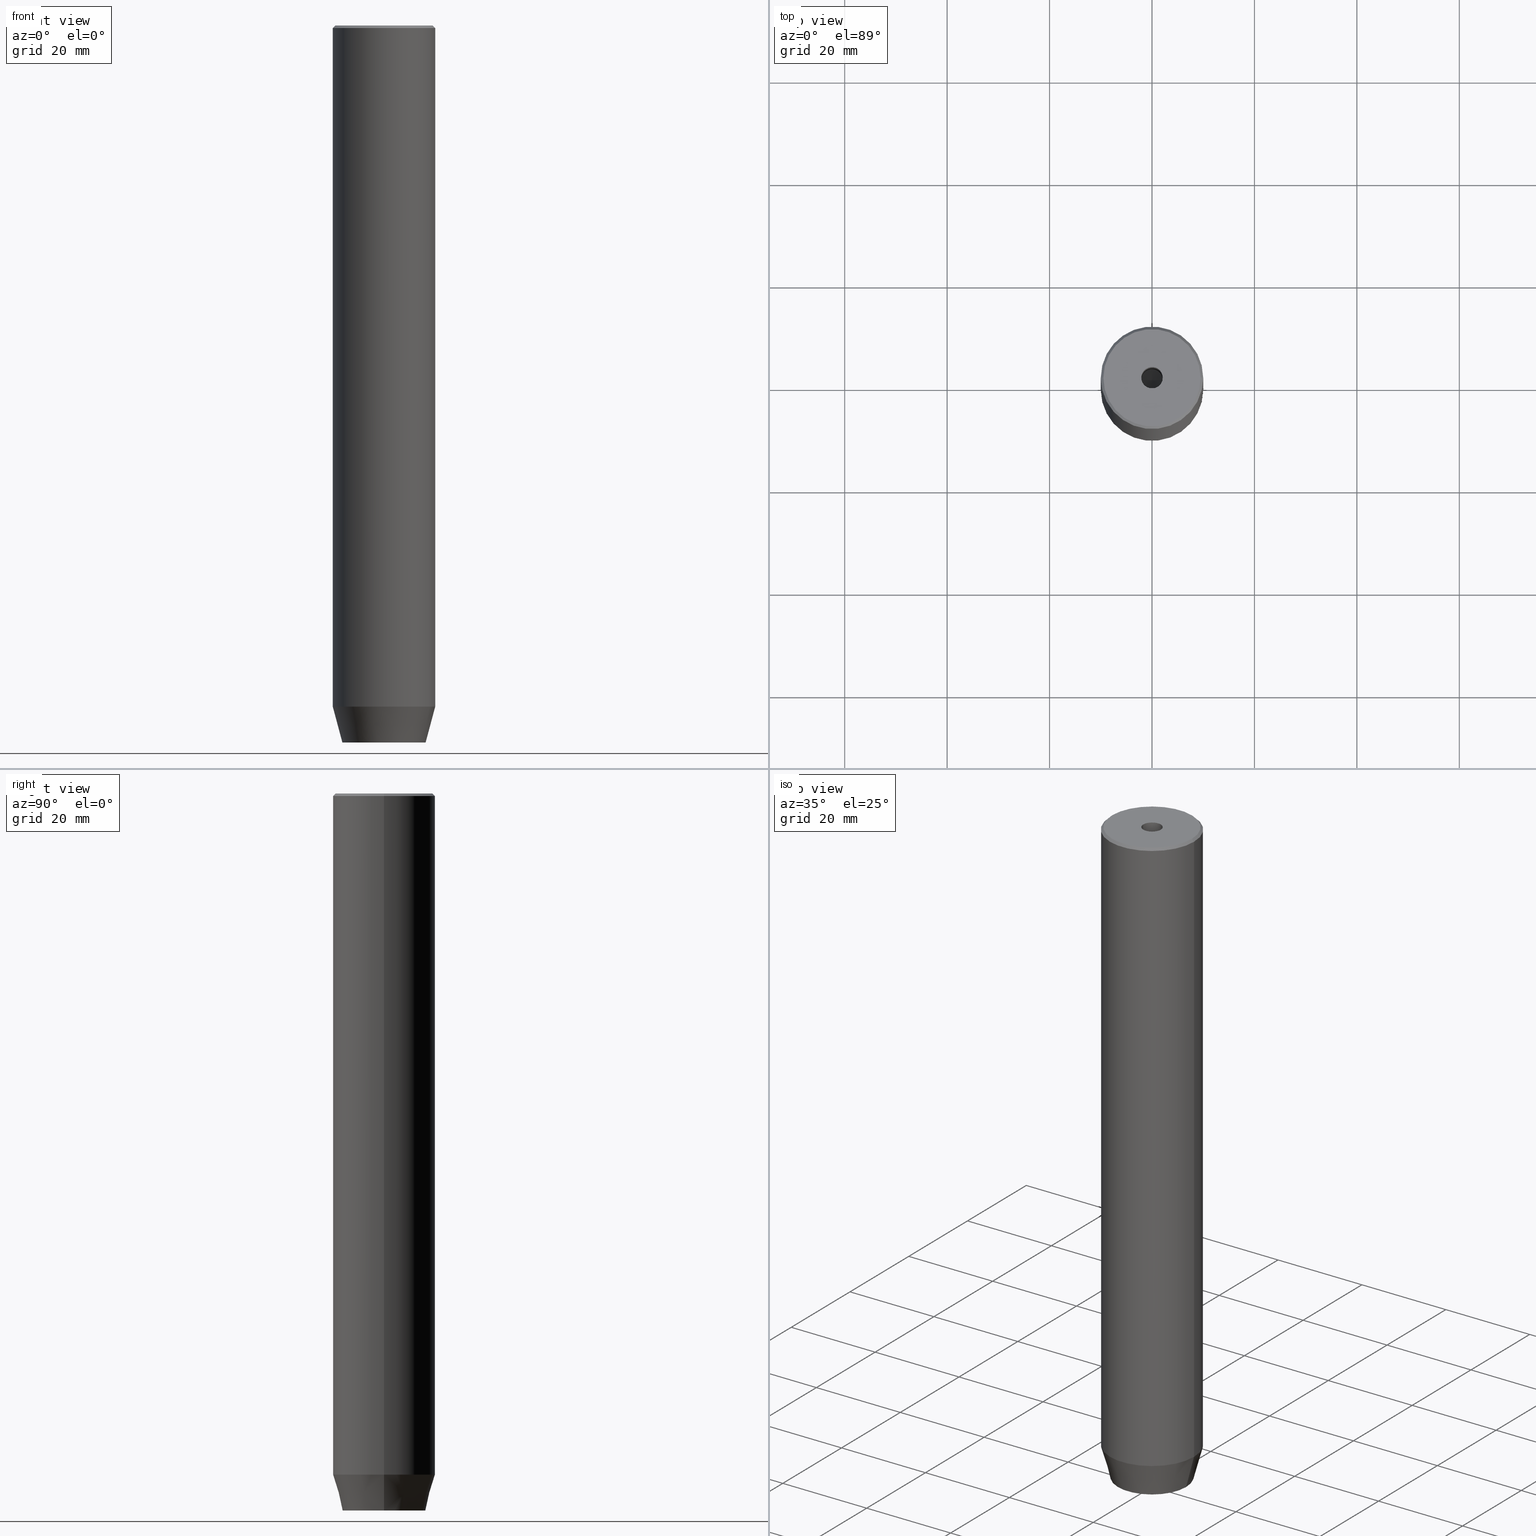
[diagram: canonical four-view strip — front | top / right | iso, engineering-drawing reading convention]
A machine part, canonical four-view strip (front | top / right | iso — engineering-drawing reading convention). The complete STEP part file that produces these views, byte-faithful:
ISO-10303-21;
HEADER;
FILE_DESCRIPTION (( 'STEP AP203' ),
    '1' );
FILE_NAME ('b7e2.STEP',
    '2024-01-02T19:04:44',
    ( '' ),
    ( '' ),
    'SwSTEP 2.0',
    'SolidWorks 2019',
    '' );
FILE_SCHEMA (( 'CONFIG_CONTROL_DESIGN' ));
ENDSEC;

DATA;
#1 = LINE ( 'NONE', #5, #105 ) ;
#2 = AXIS2_PLACEMENT_3D ( 'NONE', #461, #279, #236 ) ;
#3 = AXIS2_PLACEMENT_3D ( 'NONE', #496, #82, #266 ) ;
#4 = ORIENTED_EDGE ( 'NONE', *, *, #494, .F. ) ;
#5 = CARTESIAN_POINT ( 'NONE',  ( -10.00000000000000000, 1.224646799147353256E-15, -133.0000000000000000 ) ) ;
#6 =( LENGTH_UNIT ( ) NAMED_UNIT ( * ) SI_UNIT ( .MILLI., .METRE. ) );
#7 = VERTEX_POINT ( 'NONE', #561 ) ;
#8 = EDGE_LOOP ( 'NONE', ( #380, #12 ) ) ;
#9 = APPROVAL_STATUS ( 'not_yet_approved' ) ;
#10 = CARTESIAN_POINT ( 'NONE',  ( -2.099999999999996980, 2.571758278209438013E-16, 0.000000000000000000 ) ) ;
#11 = ORIENTED_EDGE ( 'NONE', *, *, #510, .F. ) ;
#12 = ORIENTED_EDGE ( 'NONE', *, *, #83, .F. ) ;
#13 = DIRECTION ( 'NONE',  ( 1.000000000000000000, 0.000000000000000000, 0.000000000000000000 ) ) ;
#14 = VERTEX_POINT ( 'NONE', #313 ) ;
#15 = DIRECTION ( 'NONE',  ( 1.000000000000000000, 0.000000000000000000, 0.000000000000000000 ) ) ;
#16 = VECTOR ( 'NONE', #164, 1000.000000000000000 ) ;
#17 = ORIENTED_EDGE ( 'NONE', *, *, #22, .T. ) ;
#18 = VECTOR ( 'NONE', #259, 1000.000000000000000 ) ;
#19 = PLANE ( 'NONE',  #248 ) ;
#20 = CARTESIAN_POINT ( 'NONE',  ( -2.099999999999998757, 2.571758278209440478E-16, -1.990051048614449116E-16 ) ) ;
#21 = ORIENTED_EDGE ( 'NONE', *, *, #541, .F. ) ;
#22 = EDGE_CURVE ( 'NONE', #14, #497, #404, .T. ) ;
#23 = CC_DESIGN_DATE_AND_TIME_ASSIGNMENT ( #306, #559, ( #70 ) ) ;
#24 = DIRECTION ( 'NONE',  ( 0.8660254037844384856, 0.5000000000000002220, 0.000000000000000000 ) ) ;
#25 = CARTESIAN_POINT ( 'NONE',  ( 0.000000000000000000, 0.000000000000000000, -133.0000000000000000 ) ) ;
#26 = DIRECTION ( 'NONE',  ( -1.000000000000000000, 0.000000000000000000, -0.000000000000000000 ) ) ;
#27 = EDGE_LOOP ( 'NONE', ( #518, #515, #125, #402 ) ) ;
#28 = VECTOR ( 'NONE', #331, 1000.000000000000114 ) ;
#29 = FACE_OUTER_BOUND ( 'NONE', #163, .T. ) ;
#30 = PERSON_AND_ORGANIZATION ( #99, #77 ) ;
#31 = CC_DESIGN_APPROVAL ( #388, ( #70 ) ) ;
#32 = VERTEX_POINT ( 'NONE', #174 ) ;
#33 = ADVANCED_FACE ( 'NONE', ( #135 ), #354, .F. ) ;
#34 = ORIENTED_EDGE ( 'NONE', *, *, #341, .T. ) ;
#35 = CARTESIAN_POINT ( 'NONE',  ( -2.000000000000000888, -3.464101615137754386, -137.2000000000000171 ) ) ;
#36 = DIRECTION ( 'NONE',  ( 1.000000000000000000, 0.000000000000000000, 0.000000000000000000 ) ) ;
#37 = CARTESIAN_POINT ( 'NONE',  ( 10.00000000000000000, 0.000000000000000000, -133.0000000000000000 ) ) ;
#38 = CONICAL_SURFACE ( 'NONE', #383, 9.500000000000008882, 0.7853981633974412846 ) ;
#39 = AXIS2_PLACEMENT_3D ( 'NONE', #375, #321, #325 ) ;
#40 = CARTESIAN_POINT ( 'NONE',  ( -4.000000000000000000, 0.000000000000000000, -137.2000000000000171 ) ) ;
#41 = CARTESIAN_POINT ( 'NONE',  ( 2.099999999999995648, 0.000000000000000000, -25.00000000000000000 ) ) ;
#42 = ORIENTED_EDGE ( 'NONE', *, *, #52, .T. ) ;
#43 = EDGE_CURVE ( 'NONE', #335, #551, #223, .T. ) ;
#44 = LINE ( 'NONE', #271, #215 ) ;
#45 = DIRECTION ( 'NONE',  ( 0.8660254037844387076, 0.5000000000000001110, 0.000000000000000000 ) ) ;
#46 = ADVANCED_FACE ( 'NONE', ( #493 ), #38, .T. ) ;
#47 = CARTESIAN_POINT ( 'NONE',  ( 0.000000000000000000, 0.000000000000000000, 0.000000000000000000 ) ) ;
#48 = ADVANCED_FACE ( 'NONE', ( #129, #81 ), #263, .T. ) ;
#49 = DIRECTION ( 'NONE',  ( -0.000000000000000000, -0.000000000000000000, 1.000000000000000000 ) ) ;
#50 = ORIENTED_EDGE ( 'NONE', *, *, #43, .T. ) ;
#51 = LINE ( 'NONE', #381, #147 ) ;
#52 = EDGE_CURVE ( 'NONE', #440, #338, #420, .T. ) ;
#53 = APPROVAL_ROLE ( '' ) ;
#54 = DIRECTION ( 'NONE',  ( 0.8660254037844387076, 0.5000000000000001110, 0.000000000000000000 ) ) ;
#55 = ORIENTED_EDGE ( 'NONE', *, *, #424, .T. ) ;
#56 = LINE ( 'NONE', #200, #414 ) ;
#57 = PERSON_AND_ORGANIZATION_ROLE ( 'design_owner' ) ;
#58 = ORIENTED_EDGE ( 'NONE', *, *, #413, .F. ) ;
#59 = AXIS2_PLACEMENT_3D ( 'NONE', #342, #513, #330 ) ;
#60 = APPLICATION_PROTOCOL_DEFINITION ( 'international standard', 'config_control_design', 1994, #540 ) ;
#61 = EDGE_CURVE ( 'NONE', #419, #87, #51, .T. ) ;
#62 = ORIENTED_EDGE ( 'NONE', *, *, #83, .T. ) ;
#63 = VERTEX_POINT ( 'NONE', #339 ) ;
#64 = COORDINATED_UNIVERSAL_TIME_OFFSET ( 1, 0, .AHEAD. ) ;
#65 = ORIENTED_EDGE ( 'NONE', *, *, #52, .F. ) ;
#66 = EDGE_LOOP ( 'NONE', ( #65, #155, #392 ) ) ;
#67 = ORIENTED_EDGE ( 'NONE', *, *, #519, .T. ) ;
#68 = EDGE_LOOP ( 'NONE', ( #295, #153 ) ) ;
#69 = VECTOR ( 'NONE', #193, 999.9999999999998863 ) ;
#70 = SECURITY_CLASSIFICATION ( '', '', #112 ) ;
#71 = ORIENTED_EDGE ( 'NONE', *, *, #288, .F. ) ;
#72 = DIRECTION ( 'NONE',  ( 1.000000000000000000, 0.000000000000000000, 0.000000000000000000 ) ) ;
#73 = DIRECTION ( 'NONE',  ( 0.000000000000000000, 0.000000000000000000, -1.000000000000000000 ) ) ;
#74 = CARTESIAN_POINT ( 'NONE',  ( 0.000000000000000000, 0.000000000000000000, -140.0000000000000000 ) ) ;
#75 = PERSON_AND_ORGANIZATION_ROLE ( 'creator' ) ;
#76 = DIRECTION ( 'NONE',  ( -0.8660254037844385966, 0.5000000000000001110, 0.000000000000000000 ) ) ;
#77 = ORGANIZATION ( 'NEUR�EN�', 'NEUR�EN�', '' ) ;
#78 = FACE_OUTER_BOUND ( 'NONE', #27, .T. ) ;
#79 = FACE_OUTER_BOUND ( 'NONE', #8, .T. ) ;
#80 = EDGE_LOOP ( 'NONE', ( #349, #566, #391, #245 ) ) ;
#81 = FACE_OUTER_BOUND ( 'NONE', #157, .T. ) ;
#82 = DIRECTION ( 'NONE',  ( -0.000000000000000000, -0.000000000000000000, 1.000000000000000000 ) ) ;
#83 = EDGE_CURVE ( 'NONE', #578, #14, #195, .T. ) ;
#84 = DIRECTION ( 'NONE',  ( 0.000000000000000000, 0.000000000000000000, -1.000000000000000000 ) ) ;
#85 = VECTOR ( 'NONE', #201, 1000.000000000000114 ) ;
#86 = LINE ( 'NONE', #146, #369 ) ;
#87 = VERTEX_POINT ( 'NONE', #209 ) ;
#88 = LOCAL_TIME ( 20, 4, 44.00000000000000000, #570 ) ;
#89 = CYLINDRICAL_SURFACE ( 'NONE', #470, 10.00000000000000000 ) ;
#90 = ORIENTED_EDGE ( 'NONE', *, *, #350, .F. ) ;
#91 = EDGE_CURVE ( 'NONE', #556, #335, #396, .T. ) ;
#92 = DIRECTION ( 'NONE',  ( -0.8660254037844384856, -0.5000000000000002220, 0.000000000000000000 ) ) ;
#93 = DIRECTION ( 'NONE',  ( 0.000000000000000000, -1.000000000000000000, 0.000000000000000000 ) ) ;
#94 = ORIENTED_EDGE ( 'NONE', *, *, #378, .T. ) ;
#95 = VECTOR ( 'NONE', #54, 999.9999999999998863 ) ;
#96 = DIRECTION ( 'NONE',  ( -0.000000000000000000, -0.000000000000000000, 1.000000000000000000 ) ) ;
#97 = EDGE_CURVE ( 'NONE', #207, #426, #115, .T. ) ;
#98 = LOCAL_TIME ( 20, 4, 44.00000000000000000, #525 ) ;
#99 = PERSON ( 'NEUR�EN�', 'NEUR�EN�', 'NEUR�EN�', ('NEUR�EN�'), ('NEUR�EN�'), ('NEUR�EN�') ) ;
#100 = DIRECTION ( 'NONE',  ( 1.000000000000000000, 0.000000000000000000, 0.000000000000000000 ) ) ;
#101 = LINE ( 'NONE', #465, #95 ) ;
#102 = MECHANICAL_CONTEXT ( 'NONE', #540, 'mechanical' ) ;
#103 = VERTEX_POINT ( 'NONE', #255 ) ;
#104 = PERSON_AND_ORGANIZATION ( #99, #77 ) ;
#105 = VECTOR ( 'NONE', #150, 1000.000000000000114 ) ;
#106 = AXIS2_PLACEMENT_3D ( 'NONE', #410, #222, #577 ) ;
#107 = CARTESIAN_POINT ( 'NONE',  ( 2.099999999999995648, 0.000000000000000000, -25.00000000000000000 ) ) ;
#108 = DATE_AND_TIME ( #552, #205 ) ;
#109 = CARTESIAN_POINT ( 'NONE',  ( 0.000000000000000000, 0.000000000000000000, -137.2000000000000171 ) ) ;
#110 = VERTEX_POINT ( 'NONE', #20 ) ;
#111 = DIRECTION ( 'NONE',  ( -0.5000000000000003331, -0.8660254037844385966, 0.000000000000000000 ) ) ;
#112 = SECURITY_CLASSIFICATION_LEVEL ( 'unclassified' ) ;
#113 = EDGE_CURVE ( 'NONE', #63, #110, #399, .T. ) ;
#114 = ORIENTED_EDGE ( 'NONE', *, *, #550, .F. ) ;
#115 = LINE ( 'NONE', #301, #356 ) ;
#116 = APPROVAL_ROLE ( '' ) ;
#117 = ORIENTED_EDGE ( 'NONE', *, *, #275, .F. ) ;
#118 = UNCERTAINTY_MEASURE_WITH_UNIT (LENGTH_MEASURE( 1.000000000000000082E-05 ), #6, 'distance_accuracy_value', 'NONE');
#119 = AXIS2_PLACEMENT_3D ( 'NONE', #262, #73, #26 ) ;
#120 = PLANE ( 'NONE',  #189 ) ;
#121 = CALENDAR_DATE ( 2024, 2, 1 ) ;
#122 = ADVANCED_BREP_SHAPE_REPRESENTATION ( 'b7e2', ( #287, #415 ), #553 ) ;
#123 = DIRECTION ( 'NONE',  ( -0.000000000000000000, -0.000000000000000000, 1.000000000000000000 ) ) ;
#124 = DIRECTION ( 'NONE',  ( -1.000000000000000000, 0.000000000000000000, 0.000000000000000000 ) ) ;
#125 = ORIENTED_EDGE ( 'NONE', *, *, #97, .F. ) ;
#126 = CARTESIAN_POINT ( 'NONE',  ( -2.000000000000000888, -3.464101615137754386, -140.0000000000000000 ) ) ;
#127 = VECTOR ( 'NONE', #303, 1000.000000000000000 ) ;
#128 = CIRCLE ( 'NONE', #291, 10.00000000000000000 ) ;
#129 = FACE_BOUND ( 'NONE', #68, .T. ) ;
#130 = EDGE_CURVE ( 'NONE', #243, #497, #482, .T. ) ;
#131 = CARTESIAN_POINT ( 'NONE',  ( 0.000000000000000000, 0.000000000000000000, -140.0000000000000000 ) ) ;
#132 = DIRECTION ( 'NONE',  ( -0.000000000000000000, -0.000000000000000000, -1.000000000000000000 ) ) ;
#133 = VERTEX_POINT ( 'NONE', #485 ) ;
#134 = DIRECTION ( 'NONE',  ( 1.000000000000000000, 0.000000000000000000, 0.000000000000000000 ) ) ;
#135 = FACE_OUTER_BOUND ( 'NONE', #481, .T. ) ;
#136 = FACE_OUTER_BOUND ( 'NONE', #203, .T. ) ;
#137 = DIRECTION ( 'NONE',  ( 0.000000000000000000, 1.000000000000000000, 0.000000000000000000 ) ) ;
#138 = LINE ( 'NONE', #353, #319 ) ;
#139 = AXIS2_PLACEMENT_3D ( 'NONE', #151, #49, #385 ) ;
#140 = DIRECTION ( 'NONE',  ( 1.000000000000000000, 0.000000000000000000, 0.000000000000000000 ) ) ;
#141 = CC_DESIGN_APPROVAL ( #565, ( #446 ) ) ;
#142 = DIRECTION ( 'NONE',  ( -0.000000000000000000, -0.000000000000000000, 1.000000000000000000 ) ) ;
#143 = CARTESIAN_POINT ( 'NONE',  ( -6.432287649943602629E-15, 0.000000000000000000, -26.26180729995787999 ) ) ;
#144 = ORIENTED_EDGE ( 'NONE', *, *, #159, .T. ) ;
#145 = CC_DESIGN_DATE_AND_TIME_ASSIGNMENT ( #204, #554, ( #345 ) ) ;
#146 = CARTESIAN_POINT ( 'NONE',  ( -2.000000000000000000, 3.464101615137754830, -137.2000000000000171 ) ) ;
#147 = VECTOR ( 'NONE', #235, 1000.000000000000000 ) ;
#148 = DIRECTION ( 'NONE',  ( 1.000000000000000000, 0.000000000000000000, 0.000000000000000000 ) ) ;
#149 = CIRCLE ( 'NONE', #508, 8.124355652982137244 ) ;
#150 = DIRECTION ( 'NONE',  ( -0.2588190451025210725, 3.169619151431769255E-17, 0.9659258262890680902 ) ) ;
#151 = CARTESIAN_POINT ( 'NONE',  ( 0.000000000000000000, 0.000000000000000000, -133.0000000000000000 ) ) ;
#152 = EDGE_CURVE ( 'NONE', #103, #110, #224, .T. ) ;
#153 = ORIENTED_EDGE ( 'NONE', *, *, #447, .F. ) ;
#154 = ADVANCED_FACE ( 'NONE', ( #418 ), #284, .F. ) ;
#155 = ORIENTED_EDGE ( 'NONE', *, *, #228, .T. ) ;
#156 = CARTESIAN_POINT ( 'NONE',  ( -2.000000000000000888, -3.464101615137754386, -137.2000000000000171 ) ) ;
#157 = EDGE_LOOP ( 'NONE', ( #286, #67 ) ) ;
#158 = LINE ( 'NONE', #156, #85 ) ;
#159 = EDGE_CURVE ( 'NONE', #578, #243, #1, .T. ) ;
#160 = DIRECTION ( 'NONE',  ( 1.000000000000000000, 0.000000000000000000, 0.000000000000000000 ) ) ;
#161 = PERSON_AND_ORGANIZATION ( #99, #77 ) ;
#162 = DIRECTION ( 'NONE',  ( 0.000000000000000000, 0.000000000000000000, -1.000000000000000000 ) ) ;
#163 = EDGE_LOOP ( 'NONE', ( #50, #114, #281, #340 ) ) ;
#164 = DIRECTION ( 'NONE',  ( -0.000000000000000000, -0.000000000000000000, -1.000000000000000000 ) ) ;
#165 = EDGE_LOOP ( 'NONE', ( #352, #62, #17, #198 ) ) ;
#166 = SHAPE_DEFINITION_REPRESENTATION ( #188, #122 ) ;
#167 = LINE ( 'NONE', #441, #18 ) ;
#168 = EDGE_CURVE ( 'NONE', #207, #572, #56, .T. ) ;
#169 = AXIS2_PLACEMENT_3D ( 'NONE', #238, #421, #213 ) ;
#170 = AXIS2_PLACEMENT_3D ( 'NONE', #425, #464, #100 ) ;
#171 = DIRECTION ( 'NONE',  ( -0.000000000000000000, -0.000000000000000000, 1.000000000000000000 ) ) ;
#172 = EDGE_LOOP ( 'NONE', ( #569, #227, #11, #4 ) ) ;
#173 = EDGE_CURVE ( 'NONE', #426, #32, #138, .T. ) ;
#174 = CARTESIAN_POINT ( 'NONE',  ( 4.000000000000000000, 2.309401076758503368, -140.0000000000000000 ) ) ;
#175 = COORDINATED_UNIVERSAL_TIME_OFFSET ( 1, 0, .AHEAD. ) ;
#176 = PERSON_AND_ORGANIZATION_ROLE ( 'classification_officer' ) ;
#177 = CARTESIAN_POINT ( 'NONE',  ( 4.000000000000000000, -2.309401076758502480, -137.2000000000000171 ) ) ;
#178 = CARTESIAN_POINT ( 'NONE',  ( 0.000000000000000000, 0.000000000000000000, 0.000000000000000000 ) ) ;
#179 = AXIS2_PLACEMENT_3D ( 'NONE', #210, #562, #76 ) ;
#180 = AXIS2_PLACEMENT_3D ( 'NONE', #316, #498, #491 ) ;
#181 = DIRECTION ( 'NONE',  ( -0.000000000000000000, -0.000000000000000000, 1.000000000000000000 ) ) ;
#182 = EDGE_LOOP ( 'NONE', ( #199, #42, #431 ) ) ;
#183 = DIRECTION ( 'NONE',  ( -0.8660254037844384856, 0.5000000000000002220, 0.000000000000000000 ) ) ;
#184 = DIRECTION ( 'NONE',  ( 1.000000000000000000, 0.000000000000000000, 0.000000000000000000 ) ) ;
#185 = LINE ( 'NONE', #323, #384 ) ;
#186 = ORIENTED_EDGE ( 'NONE', *, *, #221, .F. ) ;
#187 = CARTESIAN_POINT ( 'NONE',  ( -9.500000000000008882, 0.000000000000000000, 0.000000000000000000 ) ) ;
#188 = PRODUCT_DEFINITION_SHAPE ( 'NONE', 'NONE',  #345 ) ;
#189 = AXIS2_PLACEMENT_3D ( 'NONE', #436, #252, #24 ) ;
#190 = AXIS2_PLACEMENT_3D ( 'NONE', #581, #181, #360 ) ;
#191 = CARTESIAN_POINT ( 'NONE',  ( -9.500000000000008882, 0.000000000000000000, 0.000000000000000000 ) ) ;
#192 = CARTESIAN_POINT ( 'NONE',  ( -2.099999999999995648, 2.571758278209436040E-16, -25.00000000000000000 ) ) ;
#193 = DIRECTION ( 'NONE',  ( -0.7071067811865425767, 0.000000000000000000, -0.7071067811865525687 ) ) ;
#194 = PERSON_AND_ORGANIZATION_ROLE ( 'creator' ) ;
#195 = CIRCLE ( 'NONE', #575, 8.124355652982137244 ) ;
#196 = FACE_OUTER_BOUND ( 'NONE', #165, .T. ) ;
#197 = CIRCLE ( 'NONE', #190, 9.500000000000008882 ) ;
#198 = ORIENTED_EDGE ( 'NONE', *, *, #130, .F. ) ;
#199 = ORIENTED_EDGE ( 'NONE', *, *, #228, .F. ) ;
#200 = CARTESIAN_POINT ( 'NONE',  ( 0.000000000000000000, 4.618802153517006737, -137.2000000000000171 ) ) ;
#201 = DIRECTION ( 'NONE',  ( -0.8660254037844384856, 0.5000000000000002220, 0.000000000000000000 ) ) ;
#202 = ORIENTED_EDGE ( 'NONE', *, *, #368, .T. ) ;
#203 = EDGE_LOOP ( 'NONE', ( #254, #276, #549, #390 ) ) ;
#204 = DATE_AND_TIME ( #430, #249 ) ;
#205 = LOCAL_TIME ( 20, 4, 44.00000000000000000, #509 ) ;
#206 = APPROVAL_PERSON_ORGANIZATION ( #30, #388, #477 ) ;
#207 = VERTEX_POINT ( 'NONE', #261 ) ;
#208 = ORIENTED_EDGE ( 'NONE', *, *, #487, .T. ) ;
#209 = CARTESIAN_POINT ( 'NONE',  ( -4.000000000000000000, 2.309401076758503368, -140.0000000000000000 ) ) ;
#210 = CARTESIAN_POINT ( 'NONE',  ( 2.000000000000000444, 3.464101615137754386, -137.2000000000000171 ) ) ;
#211 = CARTESIAN_POINT ( 'NONE',  ( 0.000000000000000000, 0.000000000000000000, -133.0000000000000000 ) ) ;
#212 = FACE_OUTER_BOUND ( 'NONE', #172, .T. ) ;
#213 = DIRECTION ( 'NONE',  ( 1.000000000000000000, 0.000000000000000000, 0.000000000000000000 ) ) ;
#214 = VECTOR ( 'NONE', #265, 1000.000000000000114 ) ;
#215 = VECTOR ( 'NONE', #274, 999.9999999999998863 ) ;
#216 = APPROVAL_DATE_TIME ( #437, #565 ) ;
#217 = CARTESIAN_POINT ( 'NONE',  ( 0.000000000000000000, 0.000000000000000000, 0.000000000000000000 ) ) ;
#218 = FACE_OUTER_BOUND ( 'NONE', #435, .T. ) ;
#219 = LINE ( 'NONE', #192, #367 ) ;
#220 = DESIGN_CONTEXT ( 'detailed design', #307, 'design' ) ;
#221 = EDGE_CURVE ( 'NONE', #400, #335, #231, .T. ) ;
#222 = DIRECTION ( 'NONE',  ( -0.000000000000000000, -0.000000000000000000, 1.000000000000000000 ) ) ;
#223 = LINE ( 'NONE', #126, #328 ) ;
#224 = CIRCLE ( 'NONE', #268, 2.099999999999998757 ) ;
#225 = APPROVAL_PERSON_ORGANIZATION ( #161, #565, #116 ) ;
#226 = DIRECTION ( 'NONE',  ( 0.000000000000000000, 0.000000000000000000, 1.000000000000000000 ) ) ;
#227 = ORIENTED_EDGE ( 'NONE', *, *, #538, .T. ) ;
#228 = EDGE_CURVE ( 'NONE', #440, #63, #219, .T. ) ;
#229 = LINE ( 'NONE', #531, #483 ) ;
#230 = DIRECTION ( 'NONE',  ( -1.000000000000000000, 0.000000000000000000, 0.000000000000000000 ) ) ;
#231 = LINE ( 'NONE', #314, #214 ) ;
#232 = APPROVAL_PERSON_ORGANIZATION ( #104, #468, #53 ) ;
#233 = CARTESIAN_POINT ( 'NONE',  ( -4.000000000000000000, 2.309401076758503368, -137.2000000000000171 ) ) ;
#234 =( NAMED_UNIT ( * ) PLANE_ANGLE_UNIT ( ) SI_UNIT ( $, .RADIAN. ) );
#235 = DIRECTION ( 'NONE',  ( -0.000000000000000000, -0.000000000000000000, -1.000000000000000000 ) ) ;
#236 = DIRECTION ( 'NONE',  ( -0.8660254037844385966, -0.4999999999999999445, 0.000000000000000000 ) ) ;
#237 = DIRECTION ( 'NONE',  ( -0.000000000000000000, -0.000000000000000000, -1.000000000000000000 ) ) ;
#238 = CARTESIAN_POINT ( 'NONE',  ( 0.000000000000000000, 0.000000000000000000, 0.000000000000000000 ) ) ;
#239 = ORIENTED_EDGE ( 'NONE', *, *, #275, .T. ) ;
#240 = ORIENTED_EDGE ( 'NONE', *, *, #582, .F. ) ;
#241 = ADVANCED_FACE ( 'NONE', ( #324 ), #543, .F. ) ;
#242 = ORIENTED_EDGE ( 'NONE', *, *, #398, .F. ) ;
#243 = VERTEX_POINT ( 'NONE', #273 ) ;
#244 = APPROVAL_DATE_TIME ( #108, #468 ) ;
#245 = ORIENTED_EDGE ( 'NONE', *, *, #571, .F. ) ;
#246 = ADVANCED_FACE ( 'NONE', ( #548 ), #329, .T. ) ;
#247 = APPROVAL_DATE_TIME ( #529, #388 ) ;
#248 = AXIS2_PLACEMENT_3D ( 'NONE', #35, #111, #522 ) ;
#249 = LOCAL_TIME ( 20, 4, 44.00000000000000000, #64 ) ;
#250 = DIRECTION ( 'NONE',  ( 1.000000000000000000, 0.000000000000000000, 0.000000000000000000 ) ) ;
#251 = EDGE_LOOP ( 'NONE', ( #240, #479, #475, #428 ) ) ;
#252 = DIRECTION ( 'NONE',  ( 0.5000000000000003331, -0.8660254037844385966, 0.000000000000000000 ) ) ;
#253 = PERSON_AND_ORGANIZATION ( #99, #77 ) ;
#254 = ORIENTED_EDGE ( 'NONE', *, *, #587, .T. ) ;
#255 = CARTESIAN_POINT ( 'NONE',  ( 2.099999999999998757, 0.000000000000000000, -1.990051048614449116E-16 ) ) ;
#256 = ORIENTED_EDGE ( 'NONE', *, *, #571, .T. ) ;
#257 = CARTESIAN_POINT ( 'NONE',  ( -4.000000000000000000, -2.309401076758503368, -137.2000000000000171 ) ) ;
#258 = CIRCLE ( 'NONE', #170, 10.00000000000000000 ) ;
#259 = DIRECTION ( 'NONE',  ( 0.000000000000000000, -1.000000000000000000, 0.000000000000000000 ) ) ;
#260 = PERSON_AND_ORGANIZATION ( #99, #77 ) ;
#261 = CARTESIAN_POINT ( 'NONE',  ( 0.000000000000000000, 4.618802153517006737, -137.2000000000000171 ) ) ;
#262 = CARTESIAN_POINT ( 'NONE',  ( 0.000000000000000000, 8.124355652982137244, -140.0000000000000000 ) ) ;
#263 = PLANE ( 'NONE',  #573 ) ;
#264 = CC_DESIGN_PERSON_AND_ORGANIZATION_ASSIGNMENT ( #285, #57, ( #454 ) ) ;
#265 = DIRECTION ( 'NONE',  ( -0.8660254037844384856, -0.5000000000000002220, 0.000000000000000000 ) ) ;
#266 = DIRECTION ( 'NONE',  ( 1.000000000000000000, 0.000000000000000000, 0.000000000000000000 ) ) ;
#267 = ORIENTED_EDGE ( 'NONE', *, *, #61, .T. ) ;
#268 = AXIS2_PLACEMENT_3D ( 'NONE', #514, #142, #456 ) ;
#269 = VECTOR ( 'NONE', #132, 1000.000000000000000 ) ;
#270 = CARTESIAN_POINT ( 'NONE',  ( 2.000000000000000888, -3.464101615137754386, -137.2000000000000171 ) ) ;
#271 = CARTESIAN_POINT ( 'NONE',  ( 9.500000000000008882, 1.163414459189986668E-15, 0.000000000000000000 ) ) ;
#272 = ORIENTED_EDGE ( 'NONE', *, *, #173, .T. ) ;
#273 = CARTESIAN_POINT ( 'NONE',  ( -10.00000000000000000, 1.224646799147353256E-15, -133.0000000000000000 ) ) ;
#274 = DIRECTION ( 'NONE',  ( 0.7071067811865425767, 8.659560562354874926E-17, -0.7071067811865525687 ) ) ;
#275 = EDGE_CURVE ( 'NONE', #87, #572, #101, .T. ) ;
#276 = ORIENTED_EDGE ( 'NONE', *, *, #458, .T. ) ;
#277 = CONICAL_SURFACE ( 'NONE', #403, 10.00000000000000000, 0.2617993877991497964 ) ;
#278 = CLOSED_SHELL ( 'NONE', ( #528, #463, #308, #336, #450, #304, #48, #438, #574, #46, #154, #536, #389, #355, #33, #373, #246, #241, #283 ) ) ;
#279 = DIRECTION ( 'NONE',  ( -0.5000000000000000000, 0.8660254037844387076, 0.000000000000000000 ) ) ;
#280 = CARTESIAN_POINT ( 'NONE',  ( 0.000000000000000000, 0.000000000000000000, -133.0000000000000000 ) ) ;
#281 = ORIENTED_EDGE ( 'NONE', *, *, #564, .F. ) ;
#282 = CARTESIAN_POINT ( 'NONE',  ( 0.000000000000000000, 0.000000000000000000, 0.000000000000000000 ) ) ;
#283 = ADVANCED_FACE ( 'NONE', ( #555 ), #297, .F. ) ;
#284 = PLANE ( 'NONE',  #2 ) ;
#285 = PERSON_AND_ORGANIZATION ( #99, #77 ) ;
#286 = ORIENTED_EDGE ( 'NONE', *, *, #359, .T. ) ;
#287 = MANIFOLD_SOLID_BREP ( 'Vrt�k z�vitn�ku pro M5 z�vit1', #278 ) ;
#288 = EDGE_CURVE ( 'NONE', #338, #63, #422, .T. ) ;
#289 = CARTESIAN_POINT ( 'NONE',  ( 4.000000000000000000, -2.309401076758502480, -140.0000000000000000 ) ) ;
#290 = DIRECTION ( 'NONE',  ( -0.000000000000000000, -0.000000000000000000, 1.000000000000000000 ) ) ;
#291 = AXIS2_PLACEMENT_3D ( 'NONE', #280, #394, #148 ) ;
#292 = PERSON_AND_ORGANIZATION ( #99, #77 ) ;
#293 = PRODUCT_RELATED_PRODUCT_CATEGORY ( 'detail', '', ( #454 ) ) ;
#294 = DIRECTION ( 'NONE',  ( -0.000000000000000000, -0.000000000000000000, 1.000000000000000000 ) ) ;
#295 = ORIENTED_EDGE ( 'NONE', *, *, #152, .F. ) ;
#296 = LINE ( 'NONE', #177, #269 ) ;
#297 = CYLINDRICAL_SURFACE ( 'NONE', #169, 2.099999999999996980 ) ;
#298 = ORIENTED_EDGE ( 'NONE', *, *, #350, .T. ) ;
#299 = ORIENTED_EDGE ( 'NONE', *, *, #130, .T. ) ;
#300 = CIRCLE ( 'NONE', #39, 10.00000000000000000 ) ;
#301 = CARTESIAN_POINT ( 'NONE',  ( 2.000000000000000444, 3.464101615137754386, -137.2000000000000171 ) ) ;
#302 = ORIENTED_EDGE ( 'NONE', *, *, #22, .F. ) ;
#303 = DIRECTION ( 'NONE',  ( -0.000000000000000000, -0.000000000000000000, 1.000000000000000000 ) ) ;
#304 = ADVANCED_FACE ( 'NONE', ( #310, #79 ), #439, .T. ) ;
#305 = LINE ( 'NONE', #347, #393 ) ;
#306 = DATE_AND_TIME ( #121, #88 ) ;
#307 = APPLICATION_CONTEXT ( 'configuration controlled 3d designs of mechanical parts and assemblies' ) ;
#308 = ADVANCED_FACE ( 'NONE', ( #212 ), #444, .T. ) ;
#309 = CALENDAR_DATE ( 2024, 2, 1 ) ;
#310 = FACE_BOUND ( 'NONE', #343, .T. ) ;
#311 = AXIS2_PLACEMENT_3D ( 'NONE', #506, #480, #250 ) ;
#312 = AXIS2_PLACEMENT_3D ( 'NONE', #47, #507, #140 ) ;
#313 = CARTESIAN_POINT ( 'NONE',  ( 8.124355652982137244, 0.000000000000000000, -140.0000000000000000 ) ) ;
#314 = CARTESIAN_POINT ( 'NONE',  ( 2.000000000000000888, -3.464101615137754386, -140.0000000000000000 ) ) ;
#315 = CYLINDRICAL_SURFACE ( 'NONE', #3, 2.099999999999996980 ) ;
#316 = CARTESIAN_POINT ( 'NONE',  ( 4.000000000000000000, 0.000000000000000000, -137.2000000000000171 ) ) ;
#317 = DIRECTION ( 'NONE',  ( 1.000000000000000000, 0.000000000000000000, 0.000000000000000000 ) ) ;
#318 = LINE ( 'NONE', #505, #433 ) ;
#319 = VECTOR ( 'NONE', #448, 1000.000000000000000 ) ;
#320 = CONICAL_SURFACE ( 'NONE', #139, 10.00000000000000000, 0.2617993877991497964 ) ;
#321 = DIRECTION ( 'NONE',  ( 0.000000000000000000, 0.000000000000000000, -1.000000000000000000 ) ) ;
#322 = DIRECTION ( 'NONE',  ( 0.000000000000000000, 1.000000000000000000, 0.000000000000000000 ) ) ;
#323 = CARTESIAN_POINT ( 'NONE',  ( -4.000000000000000000, 0.000000000000000000, -140.0000000000000000 ) ) ;
#324 = FACE_OUTER_BOUND ( 'NONE', #182, .T. ) ;
#325 = DIRECTION ( 'NONE',  ( 1.000000000000000000, 0.000000000000000000, 0.000000000000000000 ) ) ;
#326 = DIRECTION ( 'NONE',  ( 1.000000000000000000, 0.000000000000000000, 0.000000000000000000 ) ) ;
#327 = VECTOR ( 'NONE', #322, 1000.000000000000000 ) ;
#328 = VECTOR ( 'NONE', #183, 1000.000000000000114 ) ;
#329 = PLANE ( 'NONE',  #583 ) ;
#330 = DIRECTION ( 'NONE',  ( 1.000000000000000000, 0.000000000000000000, 0.000000000000000000 ) ) ;
#331 = DIRECTION ( 'NONE',  ( 0.8571673007021108903, 0.000000000000000000, 0.5150380749100565980 ) ) ;
#332 = APPLICATION_PROTOCOL_DEFINITION ( 'international standard', 'config_control_design', 1994, #307 ) ;
#333 = ORIENTED_EDGE ( 'NONE', *, *, #113, .F. ) ;
#334 = ORIENTED_EDGE ( 'NONE', *, *, #487, .F. ) ;
#335 = VERTEX_POINT ( 'NONE', #580 ) ;
#336 = ADVANCED_FACE ( 'NONE', ( #495 ), #277, .T. ) ;
#337 = DIRECTION ( 'NONE',  ( 0.000000000000000000, 0.000000000000000000, 1.000000000000000000 ) ) ;
#338 = VERTEX_POINT ( 'NONE', #41 ) ;
#339 = CARTESIAN_POINT ( 'NONE',  ( -2.099999999999995648, 2.571758278209436040E-16, -25.00000000000000000 ) ) ;
#340 = ORIENTED_EDGE ( 'NONE', *, *, #91, .T. ) ;
#341 = EDGE_CURVE ( 'NONE', #551, #87, #185, .T. ) ;
#342 = CARTESIAN_POINT ( 'NONE',  ( 0.000000000000000000, 0.000000000000000000, -25.00000000000000000 ) ) ;
#343 = EDGE_LOOP ( 'NONE', ( #117, #500, #377, #186, #417, #21 ) ) ;
#344 = ORIENTED_EDGE ( 'NONE', *, *, #474, .F. ) ;
#345 = PRODUCT_DEFINITION ( 'NEZN�M�', '', #446, #220 ) ;
#346 = VECTOR ( 'NONE', #537, 1000.000000000000000 ) ;
#347 = CARTESIAN_POINT ( 'NONE',  ( 2.099999999999996980, 0.000000000000000000, 0.000000000000000000 ) ) ;
#348 = PERSON_AND_ORGANIZATION ( #99, #77 ) ;
#349 = ORIENTED_EDGE ( 'NONE', *, *, #538, .F. ) ;
#350 = EDGE_CURVE ( 'NONE', #426, #432, #318, .T. ) ;
#351 = CALENDAR_DATE ( 2024, 2, 1 ) ;
#352 = ORIENTED_EDGE ( 'NONE', *, *, #159, .F. ) ;
#353 = CARTESIAN_POINT ( 'NONE',  ( 4.000000000000000000, 2.309401076758503368, -137.2000000000000171 ) ) ;
#354 = PLANE ( 'NONE',  #180 ) ;
#355 = ADVANCED_FACE ( 'NONE', ( #218 ), #120, .F. ) ;
#356 = VECTOR ( 'NONE', #524, 1000.000000000000000 ) ;
#357 = CIRCLE ( 'NONE', #502, 9.500000000000008882 ) ;
#358 = VECTOR ( 'NONE', #364, 1000.000000000000114 ) ;
#359 = EDGE_CURVE ( 'NONE', #517, #382, #357, .T. ) ;
#360 = DIRECTION ( 'NONE',  ( 1.000000000000000000, 0.000000000000000000, 0.000000000000000000 ) ) ;
#361 = ORIENTED_EDGE ( 'NONE', *, *, #91, .F. ) ;
#362 = DIRECTION ( 'NONE',  ( -0.000000000000000000, -0.000000000000000000, 1.000000000000000000 ) ) ;
#363 = CC_DESIGN_PERSON_AND_ORGANIZATION_ASSIGNMENT ( #292, #194, ( #345 ) ) ;
#364 = DIRECTION ( 'NONE',  ( 0.2588190451025210725, 0.000000000000000000, 0.9659258262890680902 ) ) ;
#365 = LINE ( 'NONE', #370, #346 ) ;
#366 = ORIENTED_EDGE ( 'NONE', *, *, #458, .F. ) ;
#367 = VECTOR ( 'NONE', #374, 1000.000000000000114 ) ;
#368 = EDGE_CURVE ( 'NONE', #338, #103, #305, .T. ) ;
#369 = VECTOR ( 'NONE', #45, 999.9999999999998863 ) ;
#370 = CARTESIAN_POINT ( 'NONE',  ( 2.000000000000000444, 3.464101615137754386, -140.0000000000000000 ) ) ;
#371 = LINE ( 'NONE', #527, #327 ) ;
#372 = DIRECTION ( 'NONE',  ( -1.000000000000000000, 0.000000000000000000, 0.000000000000000000 ) ) ;
#373 = ADVANCED_FACE ( 'NONE', ( #78 ), #434, .F. ) ;
#374 = DIRECTION ( 'NONE',  ( -0.8571673007021108903, 1.049727191138616847E-16, 0.5150380749100565980 ) ) ;
#375 = CARTESIAN_POINT ( 'NONE',  ( 0.000000000000000000, 0.000000000000000000, -0.4999999999999987232 ) ) ;
#376 = VERTEX_POINT ( 'NONE', #257 ) ;
#377 = ORIENTED_EDGE ( 'NONE', *, *, #43, .F. ) ;
#378 = EDGE_CURVE ( 'NONE', #32, #400, #167, .T. ) ;
#379 = CARTESIAN_POINT ( 'NONE',  ( 2.168404344971008868E-16, 4.618802153517006737, -140.0000000000000000 ) ) ;
#380 = ORIENTED_EDGE ( 'NONE', *, *, #452, .F. ) ;
#381 = CARTESIAN_POINT ( 'NONE',  ( -4.000000000000000000, 2.309401076758503368, -137.2000000000000171 ) ) ;
#382 = VERTEX_POINT ( 'NONE', #516 ) ;
#383 = AXIS2_PLACEMENT_3D ( 'NONE', #178, #84, #124 ) ;
#384 = VECTOR ( 'NONE', #137, 1000.000000000000000 ) ;
#385 = DIRECTION ( 'NONE',  ( 1.000000000000000000, 0.000000000000000000, 0.000000000000000000 ) ) ;
#386 = CARTESIAN_POINT ( 'NONE',  ( 0.000000000000000000, 0.000000000000000000, 0.000000000000000000 ) ) ;
#387 = ORIENTED_EDGE ( 'NONE', *, *, #564, .T. ) ;
#388 = APPROVAL ( #484, 'NEUR�EN�' ) ;
#389 = ADVANCED_FACE ( 'NONE', ( #29 ), #19, .F. ) ;
#390 = ORIENTED_EDGE ( 'NONE', *, *, #424, .F. ) ;
#391 = ORIENTED_EDGE ( 'NONE', *, *, #494, .T. ) ;
#392 = ORIENTED_EDGE ( 'NONE', *, *, #582, .T. ) ;
#393 = VECTOR ( 'NONE', #488, 1000.000000000000000 ) ;
#394 = DIRECTION ( 'NONE',  ( -0.000000000000000000, -0.000000000000000000, 1.000000000000000000 ) ) ;
#395 = ORIENTED_EDGE ( 'NONE', *, *, #587, .F. ) ;
#396 = LINE ( 'NONE', #401, #16 ) ;
#397 = EDGE_LOOP ( 'NONE', ( #208, #520, #298, #459, #387, #557 ) ) ;
#398 = EDGE_CURVE ( 'NONE', #432, #400, #296, .T. ) ;
#399 = LINE ( 'NONE', #10, #127 ) ;
#400 = VERTEX_POINT ( 'NONE', #289 ) ;
#401 = CARTESIAN_POINT ( 'NONE',  ( 4.336808689942017736E-16, -4.618802153517006737, -137.2000000000000171 ) ) ;
#402 = ORIENTED_EDGE ( 'NONE', *, *, #168, .T. ) ;
#403 = AXIS2_PLACEMENT_3D ( 'NONE', #211, #123, #72 ) ;
#404 = LINE ( 'NONE', #37, #358 ) ;
#405 = LINE ( 'NONE', #409, #492 ) ;
#406 = CIRCLE ( 'NONE', #535, 2.099999999999998757 ) ;
#407 = CC_DESIGN_SECURITY_CLASSIFICATION ( #70, ( #446 ) ) ;
#408 = CC_DESIGN_PERSON_AND_ORGANIZATION_ASSIGNMENT ( #348, #176, ( #70 ) ) ;
#409 = CARTESIAN_POINT ( 'NONE',  ( 10.00000000000000000, 0.000000000000000000, 0.000000000000000000 ) ) ;
#410 = CARTESIAN_POINT ( 'NONE',  ( 0.000000000000000000, 0.000000000000000000, -25.00000000000000000 ) ) ;
#411 = ORIENTED_EDGE ( 'NONE', *, *, #452, .T. ) ;
#412 = CARTESIAN_POINT ( 'NONE',  ( 0.000000000000000000, 0.000000000000000000, -1.990051048614449116E-16 ) ) ;
#413 = EDGE_CURVE ( 'NONE', #376, #419, #371, .T. ) ;
#414 = VECTOR ( 'NONE', #533, 1000.000000000000000 ) ;
#415 = AXIS2_PLACEMENT_3D ( 'NONE', #386, #337, #13 ) ;
#416 = CARTESIAN_POINT ( 'NONE',  ( 0.000000000000000000, 0.000000000000000000, 0.000000000000000000 ) ) ;
#417 = ORIENTED_EDGE ( 'NONE', *, *, #378, .F. ) ;
#418 = FACE_OUTER_BOUND ( 'NONE', #460, .T. ) ;
#419 = VERTEX_POINT ( 'NONE', #233 ) ;
#420 = LINE ( 'NONE', #107, #28 ) ;
#421 = DIRECTION ( 'NONE',  ( -0.000000000000000000, -0.000000000000000000, 1.000000000000000000 ) ) ;
#422 = CIRCLE ( 'NONE', #501, 2.099999999999995648 ) ;
#423 = AXIS2_PLACEMENT_3D ( 'NONE', #40, #230, #226 ) ;
#424 = EDGE_CURVE ( 'NONE', #497, #133, #405, .T. ) ;
#425 = CARTESIAN_POINT ( 'NONE',  ( 0.000000000000000000, 0.000000000000000000, -0.4999999999999987232 ) ) ;
#426 = VERTEX_POINT ( 'NONE', #532 ) ;
#427 = LINE ( 'NONE', #547, #512 ) ;
#428 = ORIENTED_EDGE ( 'NONE', *, *, #368, .F. ) ;
#429 = ORIENTED_EDGE ( 'NONE', *, *, #61, .F. ) ;
#430 = CALENDAR_DATE ( 2024, 2, 1 ) ;
#431 = ORIENTED_EDGE ( 'NONE', *, *, #288, .T. ) ;
#432 = VERTEX_POINT ( 'NONE', #504 ) ;
#433 = VECTOR ( 'NONE', #93, 1000.000000000000000 ) ;
#434 = PLANE ( 'NONE',  #179 ) ;
#435 = EDGE_LOOP ( 'NONE', ( #490, #361, #344, #511 ) ) ;
#436 = CARTESIAN_POINT ( 'NONE',  ( 2.000000000000000888, -3.464101615137754386, -137.2000000000000171 ) ) ;
#437 = DATE_AND_TIME ( #309, #98 ) ;
#438 = ADVANCED_FACE ( 'NONE', ( #579 ), #455, .T. ) ;
#439 = PLANE ( 'NONE',  #119 ) ;
#440 = VERTEX_POINT ( 'NONE', #143 ) ;
#441 = CARTESIAN_POINT ( 'NONE',  ( 4.000000000000000000, 0.000000000000000000, -140.0000000000000000 ) ) ;
#442 = APPROVAL_STATUS ( 'not_yet_approved' ) ;
#443 = CC_DESIGN_PERSON_AND_ORGANIZATION_ASSIGNMENT ( #253, #563, ( #446 ) ) ;
#444 = CONICAL_SURFACE ( 'NONE', #576, 9.500000000000008882, 0.7853981633974412846 ) ;
#445 = VECTOR ( 'NONE', #92, 1000.000000000000114 ) ;
#446 = PRODUCT_DEFINITION_FORMATION_WITH_SPECIFIED_SOURCE ( 'LIBOVOLN�', '', #454, .NOT_KNOWN. ) ;
#447 = EDGE_CURVE ( 'NONE', #110, #103, #406, .T. ) ;
#448 = DIRECTION ( 'NONE',  ( -0.000000000000000000, -0.000000000000000000, -1.000000000000000000 ) ) ;
#449 = DIRECTION ( 'NONE',  ( -0.000000000000000000, -0.000000000000000000, 1.000000000000000000 ) ) ;
#450 = ADVANCED_FACE ( 'NONE', ( #136 ), #89, .T. ) ;
#451 = FACE_OUTER_BOUND ( 'NONE', #558, .T. ) ;
#452 = EDGE_CURVE ( 'NONE', #14, #578, #149, .T. ) ;
#453 = PLANE ( 'NONE',  #423 ) ;
#454 = PRODUCT ( 'b7e2', 'b7e2', '', ( #102 ) ) ;
#455 = CYLINDRICAL_SURFACE ( 'NONE', #312, 10.00000000000000000 ) ;
#456 = DIRECTION ( 'NONE',  ( 1.000000000000000000, 0.000000000000000000, 0.000000000000000000 ) ) ;
#457 = LINE ( 'NONE', #187, #69 ) ;
#458 = EDGE_CURVE ( 'NONE', #243, #7, #229, .T. ) ;
#459 = ORIENTED_EDGE ( 'NONE', *, *, #474, .T. ) ;
#460 = EDGE_LOOP ( 'NONE', ( #239, #472, #334, #267 ) ) ;
#461 = CARTESIAN_POINT ( 'NONE',  ( -2.000000000000000000, 3.464101615137754830, -137.2000000000000171 ) ) ;
#462 = CARTESIAN_POINT ( 'NONE',  ( 4.336808689942017736E-16, -4.618802153517006737, -137.2000000000000171 ) ) ;
#463 = ADVANCED_FACE ( 'NONE', ( #503 ), #544, .F. ) ;
#464 = DIRECTION ( 'NONE',  ( 0.000000000000000000, 0.000000000000000000, -1.000000000000000000 ) ) ;
#465 = CARTESIAN_POINT ( 'NONE',  ( -2.000000000000000000, 3.464101615137754830, -140.0000000000000000 ) ) ;
#466 = EDGE_LOOP ( 'NONE', ( #333, #71, #202, #489 ) ) ;
#467 = EDGE_LOOP ( 'NONE', ( #411, #144, #395, #302 ) ) ;
#468 = APPROVAL ( #9, 'NEUR�EN�' ) ;
#469 = CARTESIAN_POINT ( 'NONE',  ( -4.000000000000000000, -2.309401076758503368, -140.0000000000000000 ) ) ;
#470 = AXIS2_PLACEMENT_3D ( 'NONE', #416, #534, #317 ) ;
#471 = DIRECTION ( 'NONE',  ( 0.000000000000000000, -0.000000000000000000, 1.000000000000000000 ) ) ;
#472 = ORIENTED_EDGE ( 'NONE', *, *, #168, .F. ) ;
#473 = DIRECTION ( 'NONE',  ( -1.000000000000000000, 0.000000000000000000, -0.000000000000000000 ) ) ;
#474 = EDGE_CURVE ( 'NONE', #432, #556, #499, .T. ) ;
#475 = ORIENTED_EDGE ( 'NONE', *, *, #447, .T. ) ;
#476 = EDGE_LOOP ( 'NONE', ( #366, #299, #55, #256 ) ) ;
#477 = APPROVAL_ROLE ( '' ) ;
#478 = CC_DESIGN_PERSON_AND_ORGANIZATION_ASSIGNMENT ( #260, #75, ( #446 ) ) ;
#479 = ORIENTED_EDGE ( 'NONE', *, *, #113, .T. ) ;
#480 = DIRECTION ( 'NONE',  ( -0.000000000000000000, -0.000000000000000000, 1.000000000000000000 ) ) ;
#481 = EDGE_LOOP ( 'NONE', ( #94, #242, #90, #272 ) ) ;
#482 = CIRCLE ( 'NONE', #521, 10.00000000000000000 ) ;
#483 = VECTOR ( 'NONE', #586, 1000.000000000000000 ) ;
#484 = APPROVAL_STATUS ( 'not_yet_approved' ) ;
#485 = CARTESIAN_POINT ( 'NONE',  ( 10.00000000000000000, 0.000000000000000000, -0.4999999999999987232 ) ) ;
#486 = ORIENTED_EDGE ( 'NONE', *, *, #550, .T. ) ;
#487 = EDGE_CURVE ( 'NONE', #419, #207, #86, .T. ) ;
#488 = DIRECTION ( 'NONE',  ( -0.000000000000000000, -0.000000000000000000, 1.000000000000000000 ) ) ;
#489 = ORIENTED_EDGE ( 'NONE', *, *, #152, .T. ) ;
#490 = ORIENTED_EDGE ( 'NONE', *, *, #221, .T. ) ;
#491 = DIRECTION ( 'NONE',  ( -0.000000000000000000, 0.000000000000000000, -1.000000000000000000 ) ) ;
#492 = VECTOR ( 'NONE', #362, 1000.000000000000000 ) ;
#493 = FACE_OUTER_BOUND ( 'NONE', #80, .T. ) ;
#494 = EDGE_CURVE ( 'NONE', #517, #7, #457, .T. ) ;
#495 = FACE_OUTER_BOUND ( 'NONE', #467, .T. ) ;
#496 = CARTESIAN_POINT ( 'NONE',  ( 0.000000000000000000, 0.000000000000000000, 0.000000000000000000 ) ) ;
#497 = VERTEX_POINT ( 'NONE', #584 ) ;
#498 = DIRECTION ( 'NONE',  ( 1.000000000000000000, 0.000000000000000000, -0.000000000000000000 ) ) ;
#499 = LINE ( 'NONE', #270, #445 ) ;
#500 = ORIENTED_EDGE ( 'NONE', *, *, #341, .F. ) ;
#501 = AXIS2_PLACEMENT_3D ( 'NONE', #523, #526, #134 ) ;
#502 = AXIS2_PLACEMENT_3D ( 'NONE', #568, #171, #160 ) ;
#503 = FACE_OUTER_BOUND ( 'NONE', #66, .T. ) ;
#504 = CARTESIAN_POINT ( 'NONE',  ( 4.000000000000000000, -2.309401076758502480, -137.2000000000000171 ) ) ;
#505 = CARTESIAN_POINT ( 'NONE',  ( 4.000000000000000000, 0.000000000000000000, -137.2000000000000171 ) ) ;
#506 = CARTESIAN_POINT ( 'NONE',  ( 0.000000000000000000, 0.000000000000000000, -25.00000000000000000 ) ) ;
#507 = DIRECTION ( 'NONE',  ( -0.000000000000000000, -0.000000000000000000, 1.000000000000000000 ) ) ;
#508 = AXIS2_PLACEMENT_3D ( 'NONE', #131, #449, #36 ) ;
#509 = COORDINATED_UNIVERSAL_TIME_OFFSET ( 1, 0, .AHEAD. ) ;
#510 = EDGE_CURVE ( 'NONE', #7, #133, #300, .T. ) ;
#511 = ORIENTED_EDGE ( 'NONE', *, *, #398, .T. ) ;
#512 = VECTOR ( 'NONE', #237, 1000.000000000000000 ) ;
#513 = DIRECTION ( 'NONE',  ( -0.000000000000000000, -0.000000000000000000, 1.000000000000000000 ) ) ;
#514 = CARTESIAN_POINT ( 'NONE',  ( 0.000000000000000000, 0.000000000000000000, -1.990051048614449116E-16 ) ) ;
#515 = ORIENTED_EDGE ( 'NONE', *, *, #173, .F. ) ;
#516 = CARTESIAN_POINT ( 'NONE',  ( 9.500000000000008882, 1.194030629168669864E-15, 0.000000000000000000 ) ) ;
#517 = VERTEX_POINT ( 'NONE', #191 ) ;
#518 = ORIENTED_EDGE ( 'NONE', *, *, #541, .T. ) ;
#519 = EDGE_CURVE ( 'NONE', #382, #517, #197, .T. ) ;
#520 = ORIENTED_EDGE ( 'NONE', *, *, #97, .T. ) ;
#521 = AXIS2_PLACEMENT_3D ( 'NONE', #25, #290, #560 ) ;
#522 = DIRECTION ( 'NONE',  ( 0.8660254037844384856, -0.5000000000000002220, 0.000000000000000000 ) ) ;
#523 = CARTESIAN_POINT ( 'NONE',  ( 0.000000000000000000, 0.000000000000000000, -25.00000000000000000 ) ) ;
#524 = DIRECTION ( 'NONE',  ( 0.8660254037844385966, -0.5000000000000001110, 0.000000000000000000 ) ) ;
#525 = COORDINATED_UNIVERSAL_TIME_OFFSET ( 1, 0, .AHEAD. ) ;
#526 = DIRECTION ( 'NONE',  ( -0.000000000000000000, -0.000000000000000000, 1.000000000000000000 ) ) ;
#527 = CARTESIAN_POINT ( 'NONE',  ( -4.000000000000000000, 0.000000000000000000, -137.2000000000000171 ) ) ;
#528 = ADVANCED_FACE ( 'NONE', ( #539 ), #315, .F. ) ;
#529 = DATE_AND_TIME ( #351, #545 ) ;
#530 = CC_DESIGN_APPROVAL ( #468, ( #345 ) ) ;
#531 = CARTESIAN_POINT ( 'NONE',  ( -10.00000000000000000, 1.224646799147353256E-15, 0.000000000000000000 ) ) ;
#532 = CARTESIAN_POINT ( 'NONE',  ( 4.000000000000000000, 2.309401076758503368, -137.2000000000000171 ) ) ;
#533 = DIRECTION ( 'NONE',  ( -0.000000000000000000, -0.000000000000000000, -1.000000000000000000 ) ) ;
#534 = DIRECTION ( 'NONE',  ( -0.000000000000000000, -0.000000000000000000, 1.000000000000000000 ) ) ;
#535 = AXIS2_PLACEMENT_3D ( 'NONE', #412, #96, #184 ) ;
#536 = ADVANCED_FACE ( 'NONE', ( #451 ), #453, .F. ) ;
#537 = DIRECTION ( 'NONE',  ( 0.8660254037844385966, -0.5000000000000001110, 0.000000000000000000 ) ) ;
#538 = EDGE_CURVE ( 'NONE', #382, #133, #44, .T. ) ;
#539 = FACE_OUTER_BOUND ( 'NONE', #251, .T. ) ;
#540 = APPLICATION_CONTEXT ( 'configuration controlled 3d designs of mechanical parts and assemblies' ) ;
#541 = EDGE_CURVE ( 'NONE', #572, #32, #365, .T. ) ;
#542 = CARTESIAN_POINT ( 'NONE',  ( -8.124355652982137244, 1.109796706851640556E-15, -140.0000000000000000 ) ) ;
#543 = CONICAL_SURFACE ( 'NONE', #311, 2.099999999999995648, 1.029744258676651647 ) ;
#544 = CONICAL_SURFACE ( 'NONE', #106, 2.099999999999995648, 1.029744258676651647 ) ;
#545 = LOCAL_TIME ( 20, 4, 44.00000000000000000, #175 ) ;
#546 =( NAMED_UNIT ( * ) SI_UNIT ( $, .STERADIAN. ) SOLID_ANGLE_UNIT ( ) );
#547 = CARTESIAN_POINT ( 'NONE',  ( -4.000000000000000000, -2.309401076758503368, -137.2000000000000171 ) ) ;
#548 = FACE_OUTER_BOUND ( 'NONE', #397, .T. ) ;
#549 = ORIENTED_EDGE ( 'NONE', *, *, #510, .T. ) ;
#550 = EDGE_CURVE ( 'NONE', #376, #551, #427, .T. ) ;
#551 = VERTEX_POINT ( 'NONE', #469 ) ;
#552 = CALENDAR_DATE ( 2024, 2, 1 ) ;
#553 =( GEOMETRIC_REPRESENTATION_CONTEXT ( 3 ) GLOBAL_UNCERTAINTY_ASSIGNED_CONTEXT ( ( #118 ) ) GLOBAL_UNIT_ASSIGNED_CONTEXT ( ( #6, #234, #546 ) ) REPRESENTATION_CONTEXT ( 'NONE', 'WORKASPACE' ) );
#554 = DATE_TIME_ROLE ( 'creation_date' ) ;
#555 = FACE_OUTER_BOUND ( 'NONE', #466, .T. ) ;
#556 = VERTEX_POINT ( 'NONE', #462 ) ;
#557 = ORIENTED_EDGE ( 'NONE', *, *, #413, .T. ) ;
#558 = EDGE_LOOP ( 'NONE', ( #34, #429, #58, #486 ) ) ;
#559 = DATE_TIME_ROLE ( 'classification_date' ) ;
#560 = DIRECTION ( 'NONE',  ( 1.000000000000000000, 0.000000000000000000, 0.000000000000000000 ) ) ;
#561 = CARTESIAN_POINT ( 'NONE',  ( -10.00000000000000000, 1.224646799147353256E-15, -0.4999999999999987232 ) ) ;
#562 = DIRECTION ( 'NONE',  ( 0.5000000000000001110, 0.8660254037844385966, -0.000000000000000000 ) ) ;
#563 = PERSON_AND_ORGANIZATION_ROLE ( 'design_supplier' ) ;
#564 = EDGE_CURVE ( 'NONE', #556, #376, #158, .T. ) ;
#565 = APPROVAL ( #442, 'NEUR�EN�' ) ;
#566 = ORIENTED_EDGE ( 'NONE', *, *, #359, .F. ) ;
#567 = CIRCLE ( 'NONE', #59, 2.099999999999995648 ) ;
#568 = CARTESIAN_POINT ( 'NONE',  ( 0.000000000000000000, 0.000000000000000000, 0.000000000000000000 ) ) ;
#569 = ORIENTED_EDGE ( 'NONE', *, *, #519, .F. ) ;
#570 = COORDINATED_UNIVERSAL_TIME_OFFSET ( 1, 0, .AHEAD. ) ;
#571 = EDGE_CURVE ( 'NONE', #133, #7, #258, .T. ) ;
#572 = VERTEX_POINT ( 'NONE', #379 ) ;
#573 = AXIS2_PLACEMENT_3D ( 'NONE', #282, #471, #326 ) ;
#574 = ADVANCED_FACE ( 'NONE', ( #196 ), #320, .T. ) ;
#575 = AXIS2_PLACEMENT_3D ( 'NONE', #74, #294, #15 ) ;
#576 = AXIS2_PLACEMENT_3D ( 'NONE', #217, #585, #372 ) ;
#577 = DIRECTION ( 'NONE',  ( 1.000000000000000000, 0.000000000000000000, 0.000000000000000000 ) ) ;
#578 = VERTEX_POINT ( 'NONE', #542 ) ;
#579 = FACE_OUTER_BOUND ( 'NONE', #476, .T. ) ;
#580 = CARTESIAN_POINT ( 'NONE',  ( 4.336808689942017736E-16, -4.618802153517006737, -140.0000000000000000 ) ) ;
#581 = CARTESIAN_POINT ( 'NONE',  ( 0.000000000000000000, 0.000000000000000000, 0.000000000000000000 ) ) ;
#582 = EDGE_CURVE ( 'NONE', #63, #338, #567, .T. ) ;
#583 = AXIS2_PLACEMENT_3D ( 'NONE', #109, #162, #473 ) ;
#584 = CARTESIAN_POINT ( 'NONE',  ( 10.00000000000000000, 0.000000000000000000, -133.0000000000000000 ) ) ;
#585 = DIRECTION ( 'NONE',  ( 0.000000000000000000, 0.000000000000000000, -1.000000000000000000 ) ) ;
#586 = DIRECTION ( 'NONE',  ( -0.000000000000000000, -0.000000000000000000, 1.000000000000000000 ) ) ;
#587 = EDGE_CURVE ( 'NONE', #497, #243, #128, .T. ) ;
ENDSEC;
END-ISO-10303-21;
